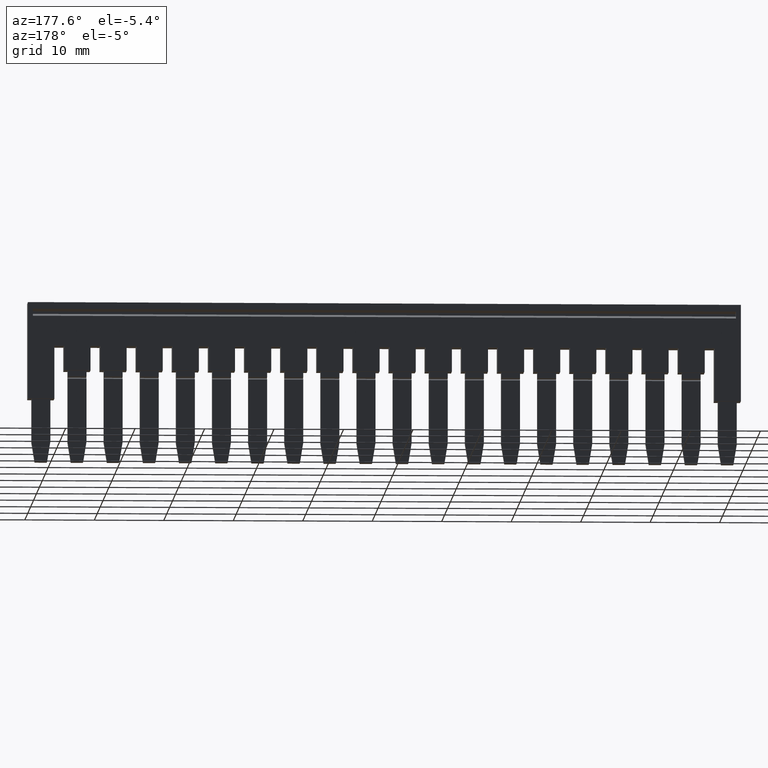
[diagram: clean part render]
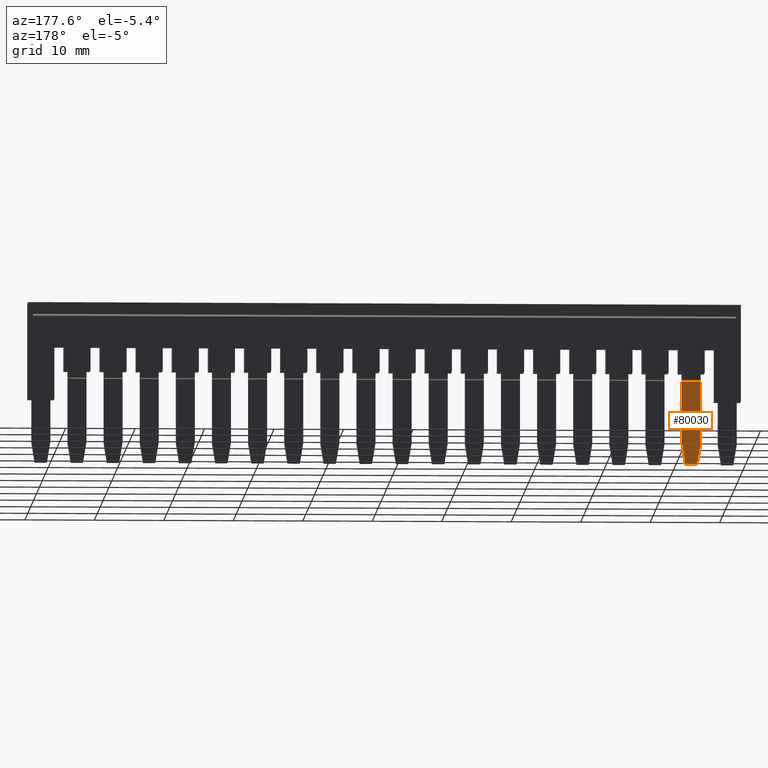
[diagram: same view with one face highlighted and labeled with its STEP entity id]
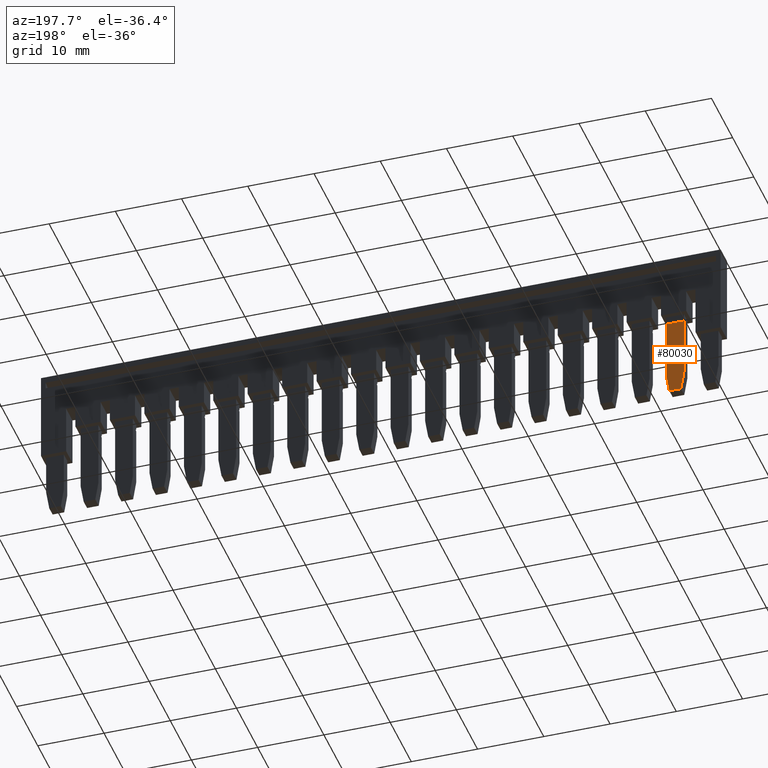
[diagram: same view with one face highlighted and labeled with its STEP entity id]
A machine part, auxiliary view. The second image highlights one B-rep face of the part: STEP entity #80030.
A second angle (auxiliary view) of the same face is appended — the face is thin or edge-on in the first view.
In plain terms, the highlighted planar face has unit normal (0, 1, 0).
Its self-contained STEP definition (entity closure, byte-faithful):
#77770=CARTESIAN_POINT('',(3.30716722168536,-12.305124,117.691972583117)
);
#77780=DIRECTION('',(0.,-0.987219178105449,-0.159368423411924));
#77790=VECTOR('',#77780,1.);
#77800=LINE('',#77770,#77790);
#77810=CARTESIAN_POINT('',(3.30716722168536,-28.9807420624751,
115.000000000964));
#77820=VERTEX_POINT('',#77810);
#77830=CARTESIAN_POINT('',(3.30716722168536,-31.8500000022958,
114.536810949968));
#77840=VERTEX_POINT('',#77830);
#77850=EDGE_CURVE('',#77820,#77840,#77800,.T.);
#78530=CARTESIAN_POINT('',(3.30716722168536,-12.305124,112.320000000965)
);
#78540=DIRECTION('',(0.,-1.,-9.11930314421364E-17));
#78550=VECTOR('',#78540,1.);
#78560=LINE('',#78530,#78550);
#78730=CARTESIAN_POINT('',(3.30716722168536,-19.8610705438387,
112.320000000965));
#78740=VERTEX_POINT('',#78730);
#78770=CARTESIAN_POINT('',(3.30716722168536,-28.9807420624754,
112.320000000965));
#78780=VERTEX_POINT('',#78770);
#78790=EDGE_CURVE('',#78740,#78780,#78560,.T.);
#79510=CARTESIAN_POINT('',(3.30716722168536,-31.8500000022956,
112.78318905196));
#79520=VERTEX_POINT('',#79510);
#79570=CARTESIAN_POINT('',(3.30716722168536,-12.305124,109.628027418811)
);
#79580=DIRECTION('',(0.,0.987219178105449,-0.159368423411924));
#79590=VECTOR('',#79580,1.);
#79600=LINE('',#79570,#79590);
#79610=EDGE_CURVE('',#79520,#78780,#79600,.T.);
#79730=CARTESIAN_POINT('',(3.30716722168536,-27.6497789998261,
113.779551985078));
#79740=DIRECTION('',(-1.,0.,0.));
#79750=DIRECTION('',(0.,-1.,0.));
#79760=AXIS2_PLACEMENT_3D('',#79730,#79740,#79750);
#79770=PLANE('',#79760);
#79780=ORIENTED_EDGE('',*,*,#78790,.T.);
#79790=CARTESIAN_POINT('',(3.30716722168536,-19.8610705438387,41.874984)
);
#79800=DIRECTION('',(0.,0.,-1.));
#79810=VECTOR('',#79800,1.);
#79820=LINE('',#79790,#79810);
#79830=CARTESIAN_POINT('',(3.30716722168536,-19.8610705438387,
115.000000000962));
#79840=VERTEX_POINT('',#79830);
#79850=EDGE_CURVE('',#79840,#78740,#79820,.T.);
#79860=ORIENTED_EDGE('',*,*,#79850,.T.);
#79870=CARTESIAN_POINT('',(3.30716722168536,-12.305124,115.000000000964)
);
#79880=DIRECTION('',(0.,-1.,-2.3789721411555E-16));
#79890=VECTOR('',#79880,1.);
#79900=LINE('',#79870,#79890);
#79910=EDGE_CURVE('',#79840,#77820,#79900,.T.);
#79920=ORIENTED_EDGE('',*,*,#79910,.F.);
#79930=ORIENTED_EDGE('',*,*,#77850,.F.);
#79940=CARTESIAN_POINT('',(3.30716722168536,-31.8500000022853,41.874984)
);
#79950=DIRECTION('',(0.,-1.44960956186225E-13,1.));
#79960=VECTOR('',#79950,1.);
#79970=LINE('',#79940,#79960);
#79980=EDGE_CURVE('',#79520,#77840,#79970,.T.);
#79990=ORIENTED_EDGE('',*,*,#79980,.T.);
#80000=ORIENTED_EDGE('',*,*,#79610,.F.);
#80010=EDGE_LOOP('',(#80000,#79990,#79930,#79920,#79860,#79780));
#80020=FACE_OUTER_BOUND('',#80010,.T.);
#80030=ADVANCED_FACE('',(#80020),#79770,.T.);